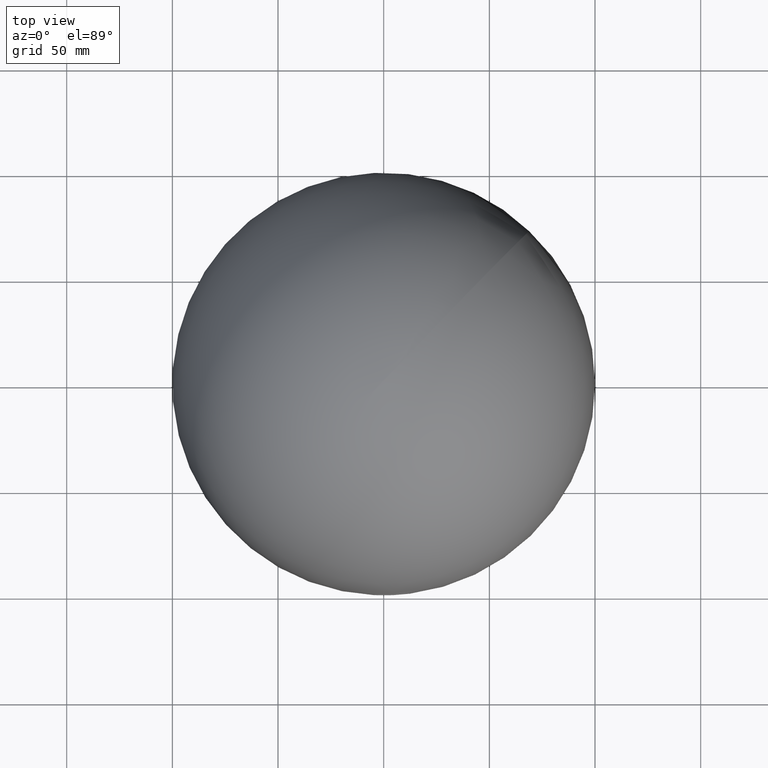
[diagram: clean part render]
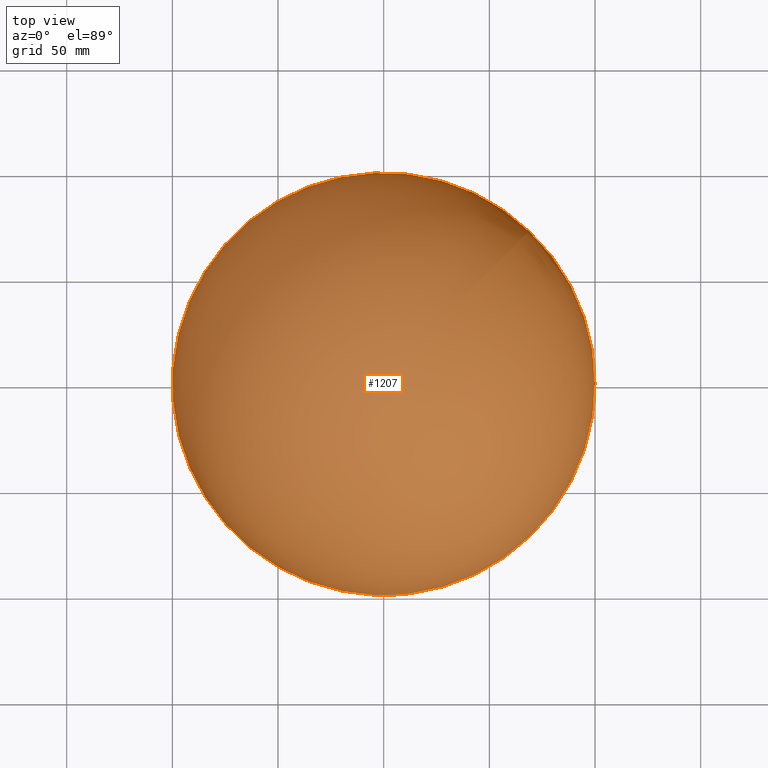
[diagram: same view with one face highlighted and labeled with its STEP entity id]
A machine part, top view. The second image highlights one B-rep face of the part: STEP entity #1207.
In plain terms, the highlighted spherical surface has radius 100 mm.
Its self-contained STEP definition (entity closure, byte-faithful):
#1207 = ADVANCED_FACE ( 'NONE', ( #11352 ), #12481, .T. ) ;
#2751 = ORIENTED_EDGE ( 'NONE', *, *, #8848, .T. ) ;
#3165 = EDGE_LOOP ( 'NONE', ( #2751 ) ) ;
#3199 = DIRECTION ( 'NONE',  ( -1.000000000000000000, -1.387778780781445700E-016, 0.0000000000000000000 ) ) ;
#3347 = DIRECTION ( 'NONE',  ( 0.0000000000000000000, 0.0000000000000000000, 1.000000000000000000 ) ) ;
#5582 = CARTESIAN_POINT ( 'NONE',  ( -1.394373279736362900E-031, 0.1127931299366308200, 4.748252699379820600 ) ) ;
#6299 = DIRECTION ( 'NONE',  ( -0.0000000000000000000, 0.0000000000000000000, -1.000000000000000000 ) ) ;
#8447 = CARTESIAN_POINT ( 'NONE',  ( -1.394373279736362900E-031, 0.1127931299366308200, 0.0000000000000000000 ) ) ;
#8848 = EDGE_CURVE ( 'NONE', #11056, #11056, #12066, .T. ) ;
#8885 = AXIS2_PLACEMENT_3D ( 'NONE', #12338, #6299, #3199 ) ;
#11056 = VERTEX_POINT ( 'NONE', #5582 ) ;
#11078 = AXIS2_PLACEMENT_3D ( 'NONE', #8447, #12752, #3347 ) ;
#11352 = FACE_OUTER_BOUND ( 'NONE', #3165, .T. ) ;
#12066 = CIRCLE ( 'NONE', #11078, 4.748252699379820600 ) ;
#12338 = CARTESIAN_POINT ( 'NONE',  ( -1.394373279736362900E-031, 100.0000000000000000, 0.0000000000000000000 ) ) ;
#12481 = SPHERICAL_SURFACE ( 'NONE', #8885, 100.0000000000000000 ) ;
#12752 = DIRECTION ( 'NONE',  ( -0.0000000000000000000, 1.000000000000000000, -0.0000000000000000000 ) ) ;